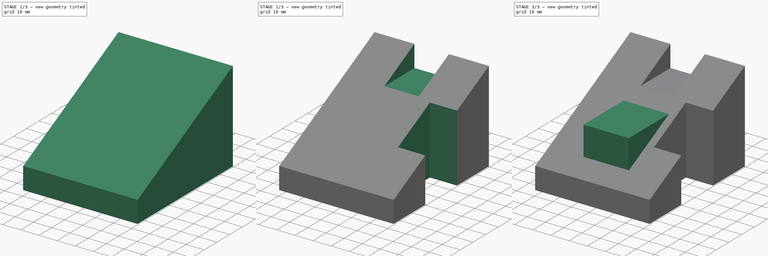
[diagram: build sequence overview — one tinted view per stage of 3, left to right]
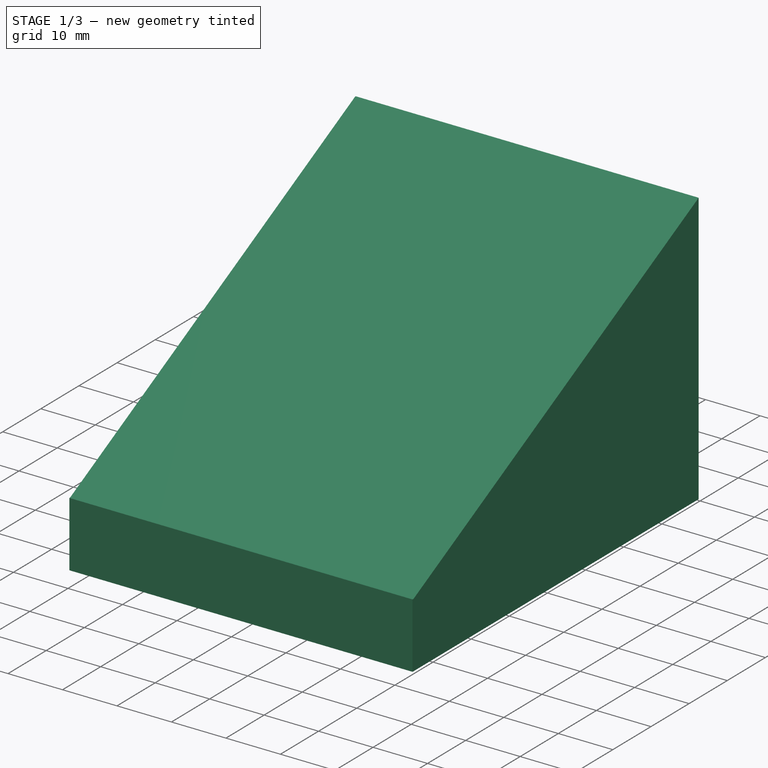
[diagram: stage 1 of 3 — iso view after this stage's code; geometry added in this stage tinted green]
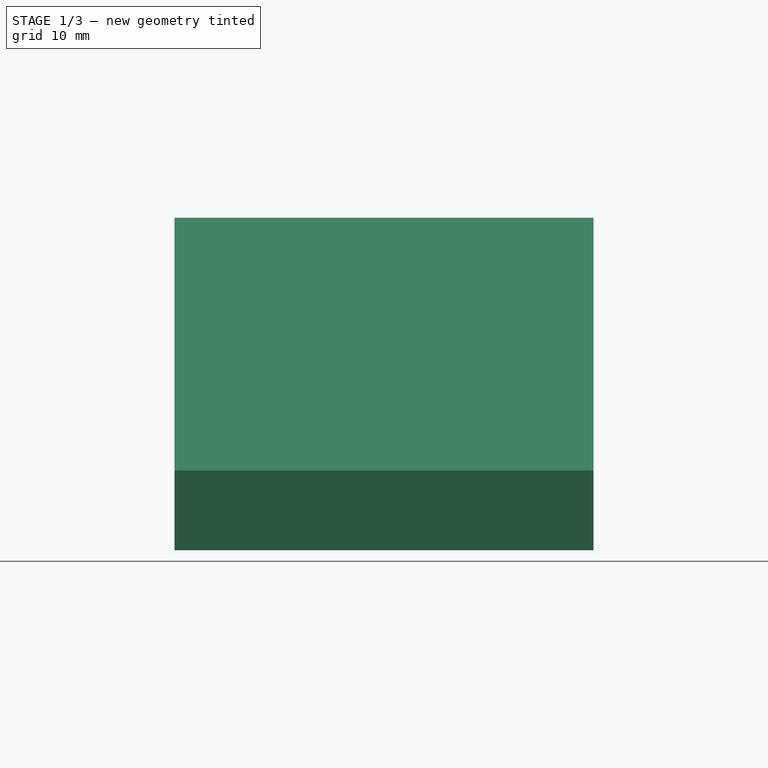
[diagram: stage 1 of 3 — front view after this stage's code; geometry added in this stage tinted green]
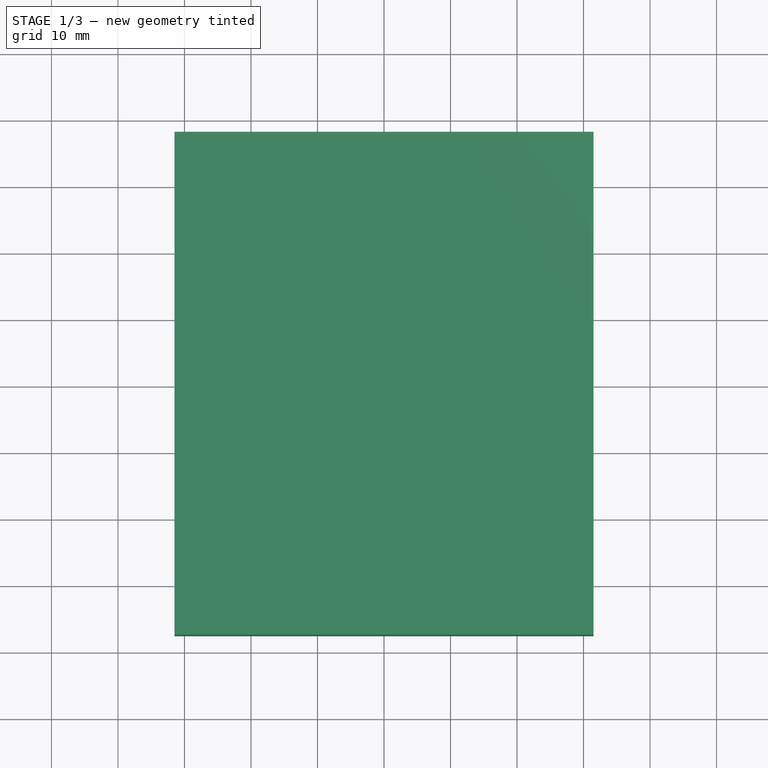
[diagram: stage 1 of 3 — top view after this stage's code; geometry added in this stage tinted green]
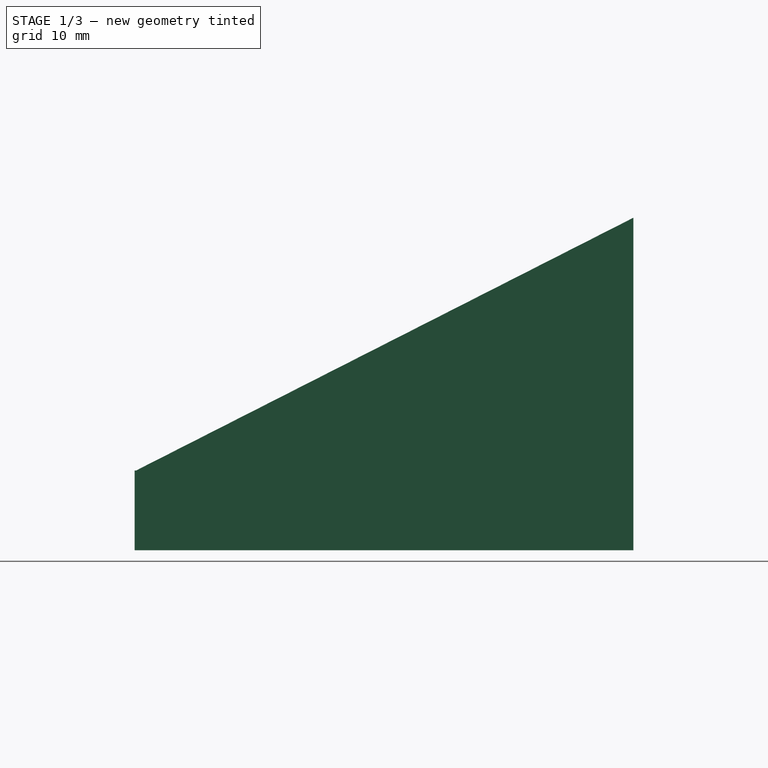
[diagram: stage 1 of 3 — right view after this stage's code; geometry added in this stage tinted green]
FCSTD DOCUMENT  (FreeCAD 0.16R)
Label: Fig 3.33 Final
License: All rights reserved
LicenseURL: http://en.wikipedia.org/wiki/All_rights_reserved
objects: Sketcher::SketchObject×6, PartDesign::Pad×4, PartDesign::Pocket×2
note: 18 computed .brp shape members not serialized (recipe doc carries the construction recipe); baked Part::Feature solids carry a one-line shape summary decoded from their .brp

FEATURE [Sketcher::SketchObject] Sketch
  sketch-geometry (4):
    g0: LineSegment StartX=-31.5 StartY=37.5 StartZ=0 EndX=31.5 EndY=37.5 EndZ=0
    g1: LineSegment StartX=31.5 StartY=37.5 StartZ=0 EndX=31.5 EndY=-37.5 EndZ=0
    g2: LineSegment StartX=31.5 StartY=-37.5 StartZ=0 EndX=-31.5 EndY=-37.5 EndZ=0
    g3: LineSegment StartX=-31.5 StartY=-37.5 StartZ=0 EndX=-31.5 EndY=37.5 EndZ=0
  constraints (12):
    c: Coincident(g0,g1)
    c: Coincident(g1,g2)
    c: Coincident(g2,g3)
    c: Coincident(g3,g0)
    c: Horizontal(g0)
    c: Horizontal(g2)
    c: Vertical(g1)
    c: Vertical(g3)
    c: DistanceX(g2,g2) = 63
    c: DistanceY(g3,g3) = 75
    c: Symmetric(g0,g1,g-1)
    c: Symmetric(g2,g1,g-2)
FEATURE [PartDesign::Pad] Pad
  Length = 12
  Length2 = 100
  Sketch = -> Sketch
  Type = 0
FEATURE [Sketcher::SketchObject] Sketch001
  ExternalGeometry = -> [Pad]
  Placement = pos=(31.5,0,0) rot=(0.57735,0.57735,0.57735;2.0944rad)
  Support = -> Pad [Face2]
  sketch-geometry (3):
    g0: LineSegment StartX=-37.26 StartY=12 StartZ=0 EndX=37.5 EndY=50 EndZ=0
    g1: LineSegment StartX=37.5 StartY=50 StartZ=0 EndX=37.5 EndY=12 EndZ=0
    g2: LineSegment StartX=37.5 StartY=12 StartZ=0 EndX=-37.26 EndY=12 EndZ=0
  constraints (7):
    c: Coincident(g0,g1)
    c: Coincident(g1,g-3)
    c: Vertical(g1)
    c: Coincident(g1,g2)
    c: Coincident(g2,g0)
    c: Horizontal(g2)
    c: DistanceY(g1,g1) = 38
FEATURE [PartDesign::Pad] Pad001
  Length = 63
  Length2 = 100
  Reversed = true
  Sketch = -> Sketch001
  Type = 0
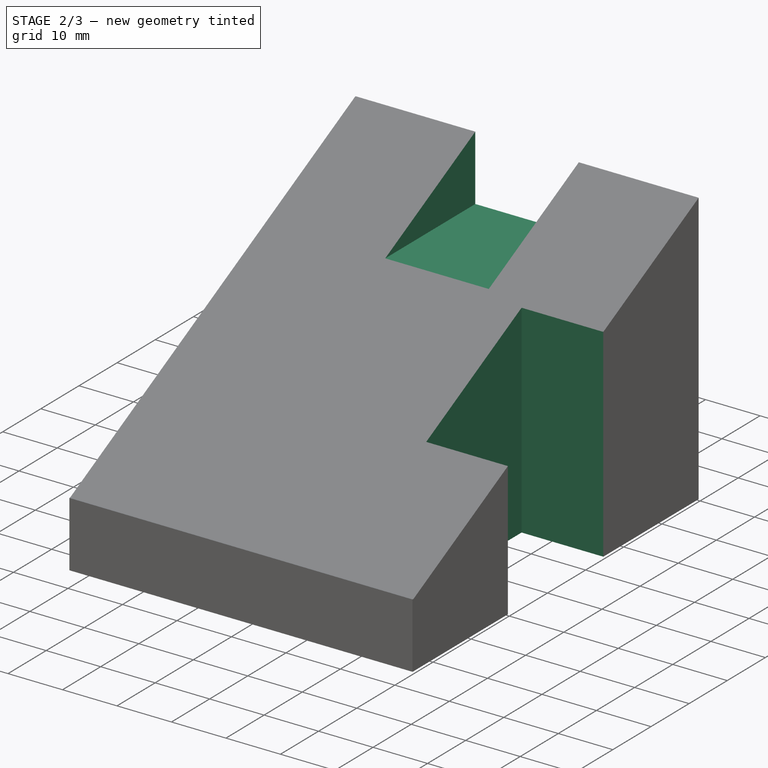
[diagram: stage 2 of 3 — iso view after this stage's code; geometry added in this stage tinted green]
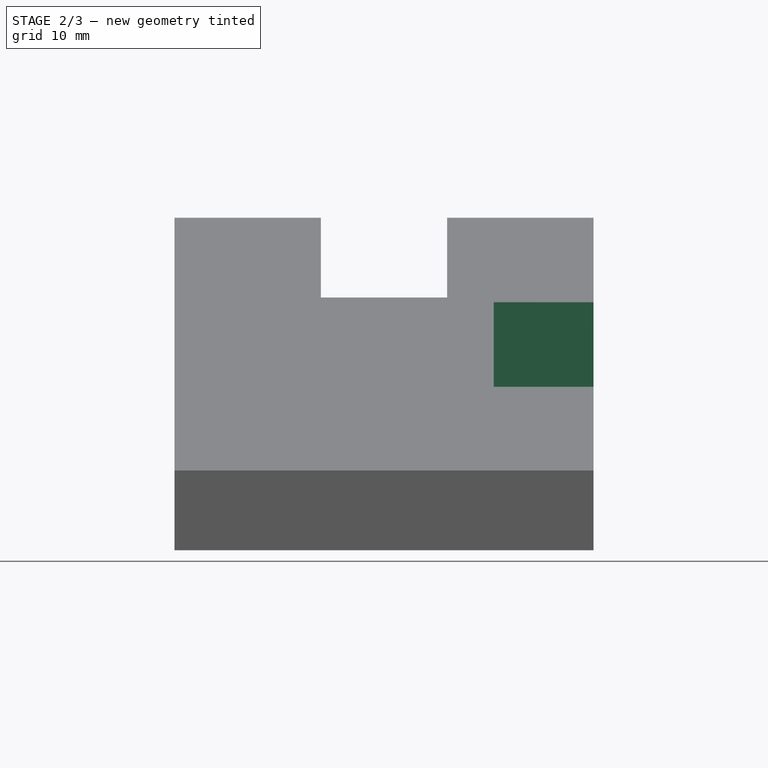
[diagram: stage 2 of 3 — front view after this stage's code; geometry added in this stage tinted green]
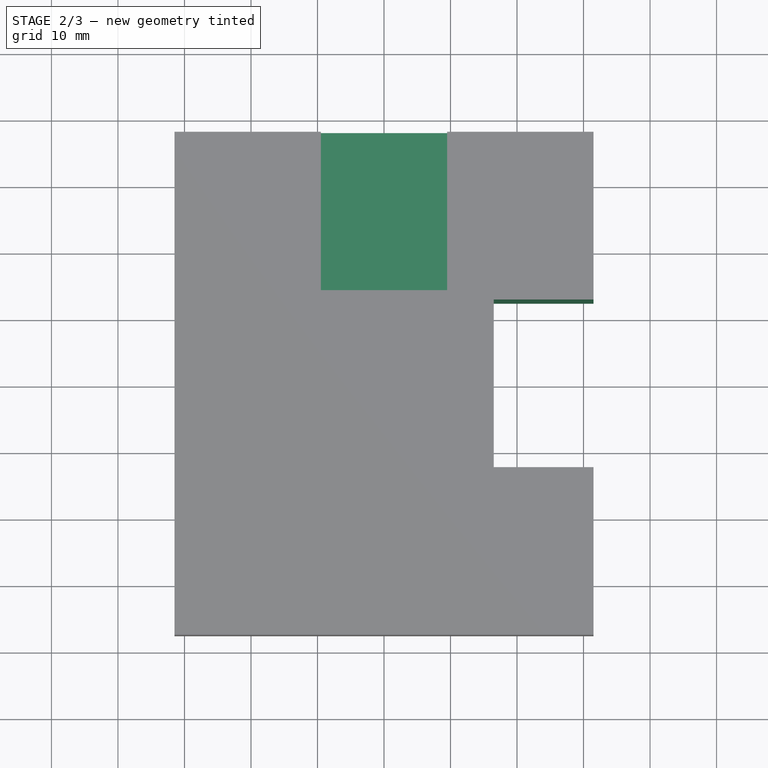
[diagram: stage 2 of 3 — top view after this stage's code; geometry added in this stage tinted green]
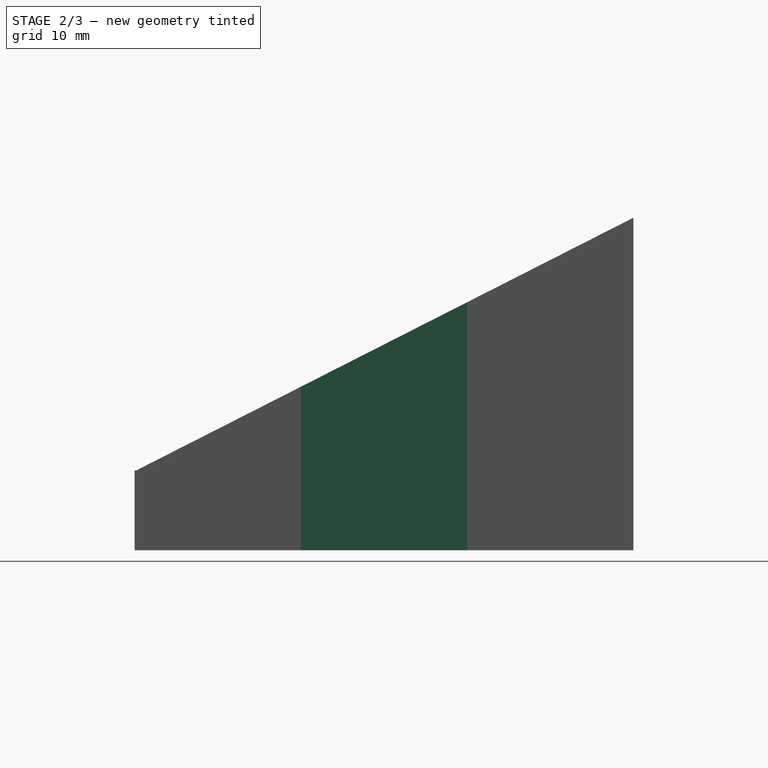
[diagram: stage 2 of 3 — right view after this stage's code; geometry added in this stage tinted green]
FEATURE [Sketcher::SketchObject] Sketch002
  ExternalGeometry = -> [Pad001]
  Placement = pos=(0,37.5,0) rot=(0,0.707107,0.707107;3.14159rad)
  Support = -> Pad001 [Face5]
  sketch-geometry (4):
    g0: LineSegment StartX=-9.5 StartY=60.1067 StartZ=0 EndX=9.5 EndY=60.1067 EndZ=0
    g1: LineSegment StartX=9.5 StartY=60.1067 StartZ=0 EndX=9.5 EndY=38 EndZ=0
    g2: LineSegment StartX=9.5 StartY=38 StartZ=0 EndX=-9.5 EndY=38 EndZ=0
    g3: LineSegment StartX=-9.5 StartY=38 StartZ=0 EndX=-9.5 EndY=60.1067 EndZ=0
  constraints (11):
    c: Coincident(g0,g1)
    c: Coincident(g1,g2)
    c: Coincident(g2,g3)
    c: Coincident(g3,g0)
    c: Horizontal(g0)
    c: Horizontal(g2)
    c: Vertical(g1)
    c: Vertical(g3)
    c: DistanceY(g1,g-3) = 12
    c: DistanceX(g1,g-3) = 22
    c: DistanceX(g-3,g2) = 22
FEATURE [PartDesign::Pocket] Pocket
  Length = 5
  Sketch = -> Sketch002
  Type = 1
FEATURE [Sketcher::SketchObject] Sketch003
  ExternalGeometry = -> [Pocket]
  Placement = pos=(31.5,0,0) rot=(0.57735,0.57735,0.57735;2.0944rad)
  Support = -> Pocket [Face3]
  sketch-geometry (4):
    g0: LineSegment StartX=-12.5 StartY=54.8933 StartZ=0 EndX=12.5 EndY=54.8933 EndZ=0
    g1: LineSegment StartX=12.5 StartY=54.8933 StartZ=0 EndX=12.5 EndY=-10.4267 EndZ=0
    g2: LineSegment StartX=12.5 StartY=-10.4267 StartZ=0 EndX=-12.5 EndY=-10.4267 EndZ=0
    g3: LineSegment StartX=-12.5 StartY=-10.4267 StartZ=0 EndX=-12.5 EndY=54.8933 EndZ=0
  constraints (10):
    c: Coincident(g0,g1)
    c: Coincident(g1,g2)
    c: Coincident(g2,g3)
    c: Coincident(g3,g0)
    c: Horizontal(g0)
    c: Horizontal(g2)
    c: Vertical(g1)
    c: Vertical(g3)
    c: DistanceX(g1,g-3) = 25
    c: DistanceX(g-3,g2) = 25
FEATURE [PartDesign::Pocket] Pocket001
  Length = 15
  Sketch = -> Sketch003
  Type = 0
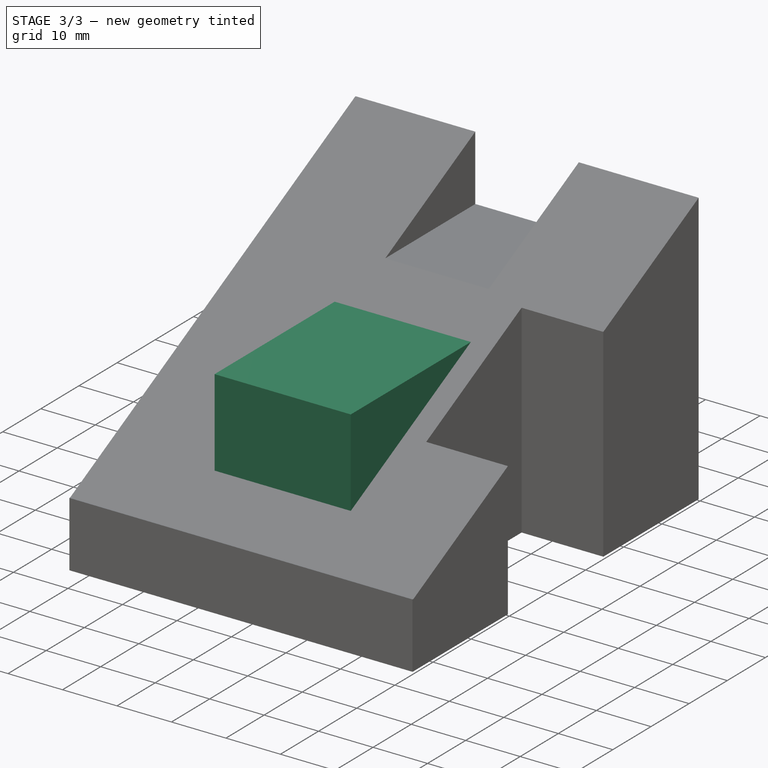
[diagram: stage 3 of 3 — iso view after this stage's code; geometry added in this stage tinted green]
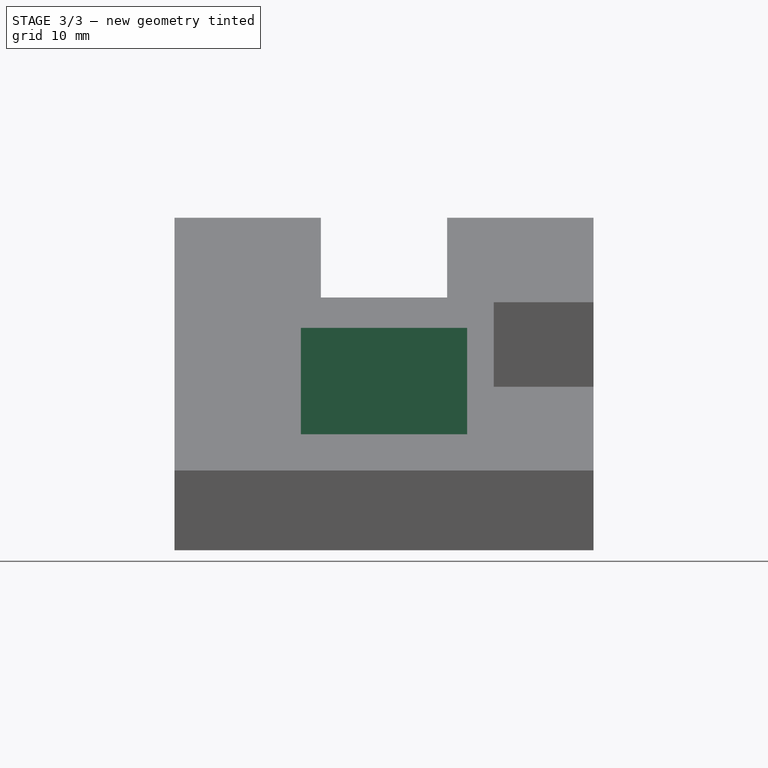
[diagram: stage 3 of 3 — front view after this stage's code; geometry added in this stage tinted green]
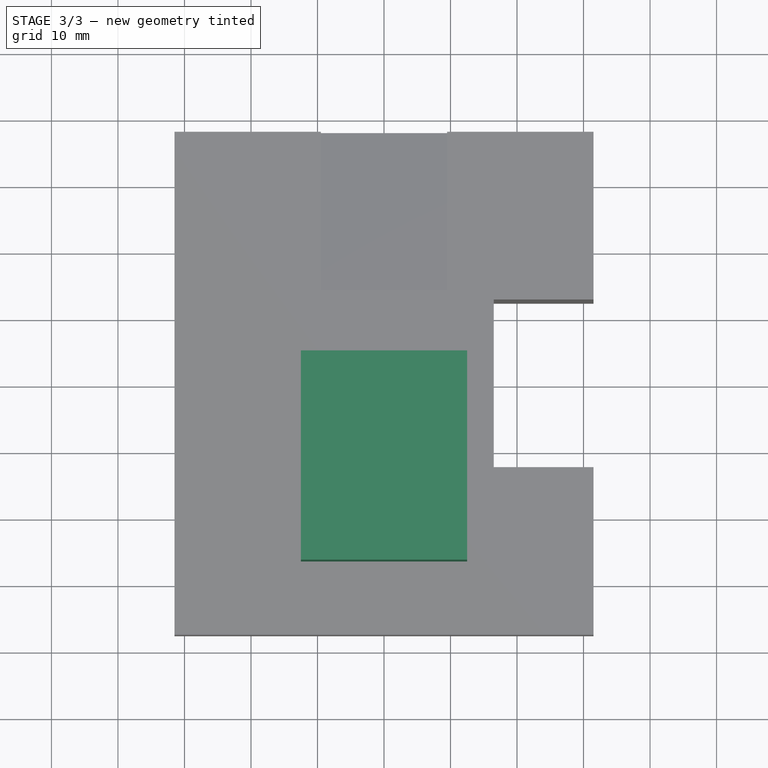
[diagram: stage 3 of 3 — top view after this stage's code; geometry added in this stage tinted green]
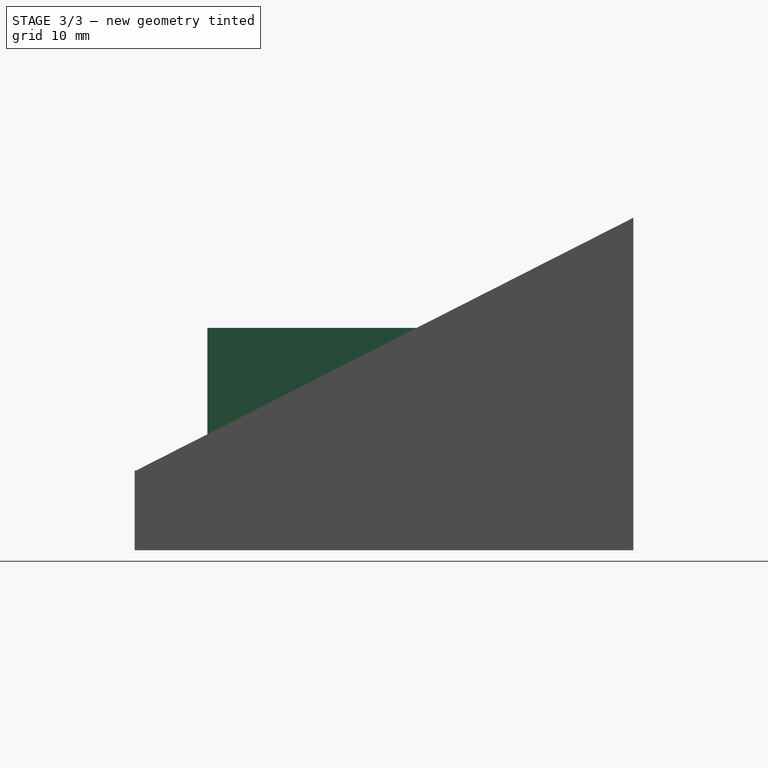
[diagram: stage 3 of 3 — right view after this stage's code; geometry added in this stage tinted green]
FEATURE [Sketcher::SketchObject] Sketch004
  ExternalGeometry = -> [Pocket001]
  Placement = pos=(0,-12.4973,24.5867) rot=(1,0,0;0.47026rad)
  Support = -> Pocket001 [Face10]
  sketch-geometry (4):
    g0: LineSegment StartX=-12.5 StartY=-2.77804 StartZ=0 EndX=12.5 EndY=-2.77804 EndZ=0
    g1: LineSegment StartX=12.5 StartY=-2.77804 StartZ=0 EndX=12.5 EndY=-7.77804 EndZ=0
    g2: LineSegment StartX=12.5 StartY=-7.77804 StartZ=0 EndX=-12.5 EndY=-7.77804 EndZ=0
    g3: LineSegment StartX=-12.5 StartY=-7.77804 StartZ=0 EndX=-12.5 EndY=-2.77804 EndZ=0
  constraints (12):
    c: Coincident(g0,g1)
    c: Coincident(g1,g2)
    c: Coincident(g2,g3)
    c: Coincident(g3,g0)
    c: Horizontal(g0)
    c: Horizontal(g2)
    c: Vertical(g1)
    c: Vertical(g3)
    c: DistanceY(g3,g3) = 5
    c: DistanceX(g2,g2) = 25
    c: DistanceY(g-3,g2) = 20
    c: DistanceX(g-3,g2) = 19
FEATURE [PartDesign::Pad] Pad002
  Length = 1
  Length2 = 100
  Sketch = -> Sketch004
  Type = 0
FEATURE [Sketcher::SketchObject] Sketch005
  ExternalGeometry = -> [Pad002]
  Placement = pos=(-12.5,0,0) rot=(0.57735,-0.57735,-0.57735;2.0944rad)
  Support = -> Pad002 [Face17]
  sketch-geometry (3):
    g0: LineSegment StartX=-4.91529 StartY=33.4374 StartZ=0 EndX=26.5626 EndY=17.4374 EndZ=0
    g1: LineSegment StartX=26.5626 StartY=17.4374 StartZ=0 EndX=26.5626 EndY=33.4374 EndZ=0
    g2: LineSegment StartX=26.5626 StartY=33.4374 StartZ=0 EndX=-4.91529 EndY=33.4374 EndZ=0
  constraints (9):
    c: Coincident(g0,g1)
    c: Vertical(g1)
    c: Coincident(g1,g2)
    c: Coincident(g2,g0)
    c: PointOnObject(g0,g-3)
    c: PointOnObject(g0,g-3)
    c: DistanceY(g1,g1) = 16
    c: Horizontal(g2)
    c: Distance(g-3,g0) = 12
FEATURE [PartDesign::Pad] Pad003
  Length = 25
  Length2 = 100
  Reversed = true
  Sketch = -> Sketch005
  Type = 0
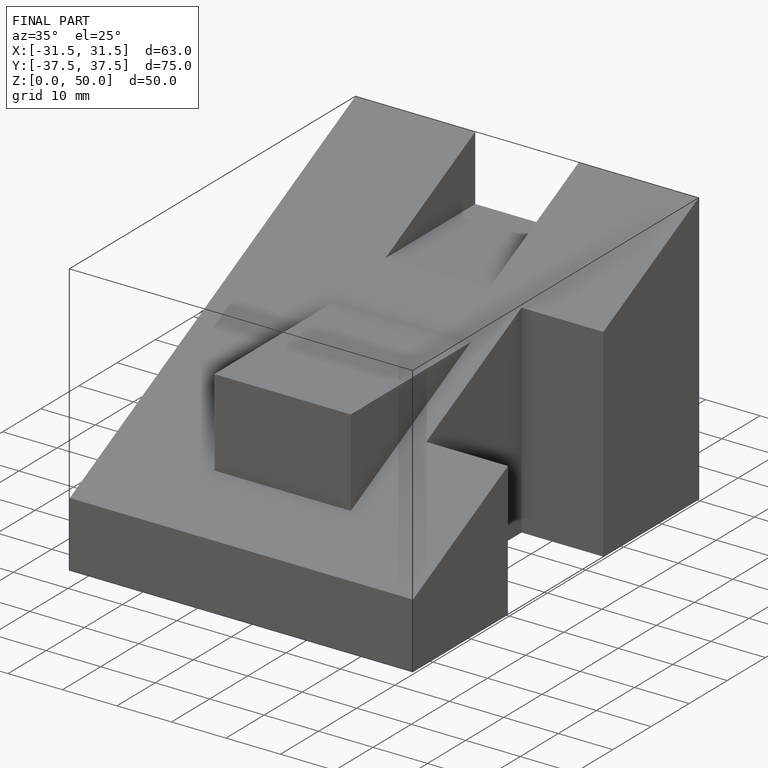
[diagram: finished part — iso view with bounding-box wireframe]
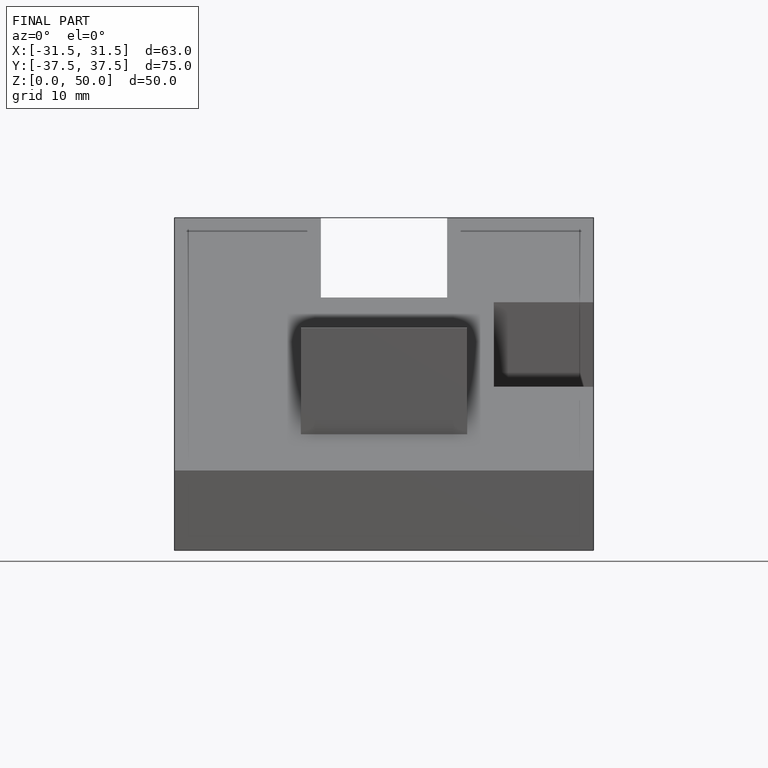
[diagram: finished part — front view with bounding-box wireframe]
